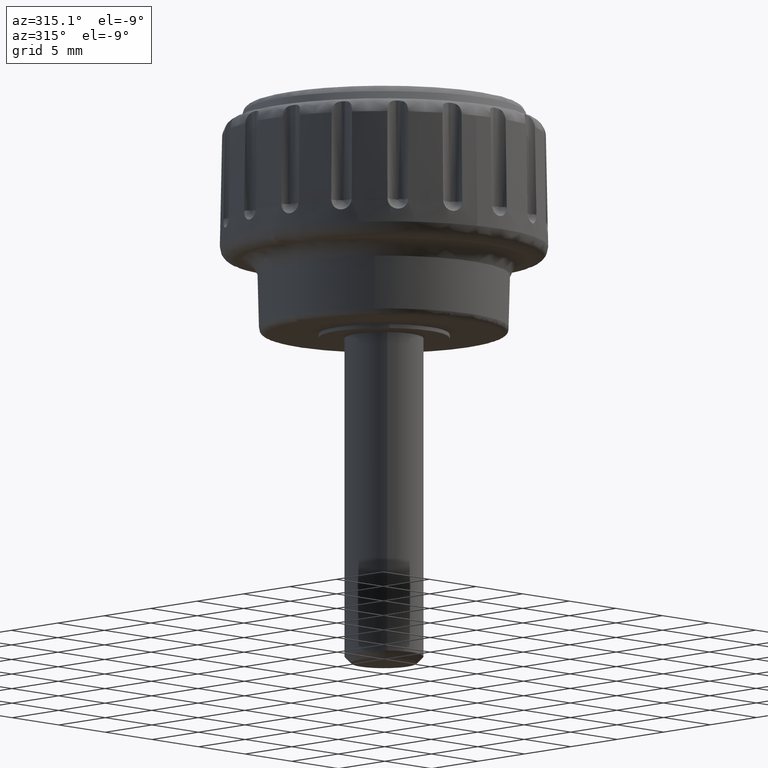
[diagram: clean part render]
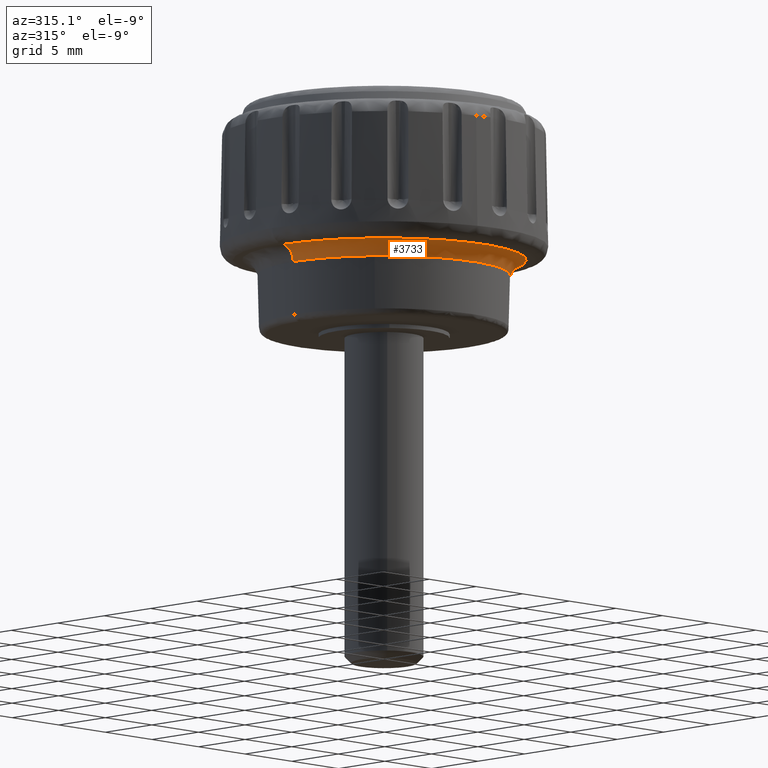
[diagram: same view with one face highlighted and labeled with its STEP entity id]
A machine part, auxiliary view. The second image highlights one B-rep face of the part: STEP entity #3733.
In plain terms, the highlighted face is a freeform B-spline surface patch.
Its self-contained STEP definition (entity closure, byte-faithful):
#1535=CARTESIAN_POINT('',(0.670740437602922,9.595245044403225,4.831421001800820));
#1536=VERTEX_POINT('',#1535);
#1550=CARTESIAN_POINT('',(9.618660000000000,0.0,4.831421000000000));
#1551=VERTEX_POINT('',#1550);
#1552=CARTESIAN_POINT('',(0.670740437602922,9.595245044403225,4.831421001800820));
#1553=CARTESIAN_POINT('',(1.195832781517715,9.558567026642926,4.831421001695140));
#1554=CARTESIAN_POINT('',(2.314559567935696,9.387328753490609,4.831421001470002));
#1555=CARTESIAN_POINT('',(3.798314048728103,8.882798900467535,4.831421001171365));
#1556=CARTESIAN_POINT('',(5.212165672242755,8.130425312257113,4.831421000886861));
#1557=CARTESIAN_POINT('',(6.373893903384330,7.257525458229110,4.831421000652985));
#1558=CARTESIAN_POINT('',(7.499924709522086,6.091831663464374,4.831421000426405));
#1559=CARTESIAN_POINT('',(8.336286062977736,4.879579574177184,4.831421000258064));
#1560=CARTESIAN_POINT('',(8.896474782467518,3.706635740320720,4.831421000145352));
#1561=CARTESIAN_POINT('',(9.276183587338258,2.623403750558714,4.831421000068941));
#1562=CARTESIAN_POINT('',(9.546863612590476,1.428719722684224,4.831421000014427));
#1563=CARTESIAN_POINT('',(9.618685904782982,0.488775746477223,4.831421000000003));
#1564=CARTESIAN_POINT('',(9.618660000000000,0.0,4.831421000000000));
#1565=B_SPLINE_CURVE_WITH_KNOTS('',3,(#1552,#1553,#1554,#1555,#1556,#1557,#1558,#1559,#1560,#1561,#1562,#1563,#1564),.UNSPECIFIED.,.F.,.U.,(4,1,1,1,1,1,1,1,1,1,4),(0.000000019536587,1.579118421281182,3.383833766430497,4.680974553147181,6.372899378853584,7.726408974241863,9.531126619045640,10.771871013030260,11.617833385466939,12.971366006660091,14.437691242315671),.UNSPECIFIED.);
#1566=EDGE_CURVE('',#1536,#1551,#1565,.T.);
#1568=CARTESIAN_POINT('',(-7.273628923355996,-6.293862690934256,4.830693251513878));
#1569=VERTEX_POINT('',#1568);
#1570=CARTESIAN_POINT('',(9.618660000000000,0.0,4.831421000000000));
#1571=CARTESIAN_POINT('',(9.618588422309912,-1.273509180384081,4.828682903290315));
#1572=CARTESIAN_POINT('',(9.365847238907701,-2.533728721521983,4.828205937086558));
#1573=CARTESIAN_POINT('',(8.874841487175836,-3.708778943518807,4.829845425240325));
#1574=CARTESIAN_POINT('',(8.384258825708505,-4.882816647215154,4.831483500678507));
#1575=CARTESIAN_POINT('',(7.665194844218289,-5.948585455979404,4.828327566499377));
#1576=CARTESIAN_POINT('',(6.758534622583657,-6.843988829878041,4.830104914143819));
#1577=CARTESIAN_POINT('',(4.934381302589804,-8.645493956336660,4.833680845379168));
#1578=CARTESIAN_POINT('',(2.459715709987807,-9.650102793004090,4.823224042509286));
#1579=CARTESIAN_POINT('',(-0.120864688618739,-9.617882045640616,4.830827326438793));
#1580=CARTESIAN_POINT('',(-1.384140432432005,-9.601941305463365,4.828571229149536));
#1581=CARTESIAN_POINT('',(-2.631206956409560,-9.337550901510914,4.828275652947290));
#1582=CARTESIAN_POINT('',(-3.792263198341610,-8.839484524100996,4.829852692310831));
#1583=CARTESIAN_POINT('',(-4.952302624758250,-8.341854337120072,4.831428350554289));
#1584=CARTESIAN_POINT('',(-6.003752260157995,-7.620359095542486,4.828379855784535));
#1585=CARTESIAN_POINT('',(-6.886326211513537,-6.715382380762375,4.830121813450998));
#1586=CARTESIAN_POINT('',(-7.019918389378883,-6.578399173792336,4.830385487580577));
#1587=CARTESIAN_POINT('',(-7.149052300256770,-6.437816981738525,4.830571426235365));
#1588=CARTESIAN_POINT('',(-7.273628923355996,-6.293862690934256,4.830693251513878));
#1589=B_SPLINE_CURVE_WITH_KNOTS('',3,(#1570,#1571,#1572,#1573,#1574,#1575,#1576,#1577,#1578,#1579,#1580,#1581,#1582,#1583,#1584,#1585,#1586,#1587,#1588),.UNSPECIFIED.,.F.,.U.,(4,3,3,3,3,3,4),(0.0,3.820536709079851,7.637781334754942,15.317879447584660,19.077526380828310,22.833880736851231,23.402467152170122),.UNSPECIFIED.);
#1590=EDGE_CURVE('',#1551,#1569,#1589,.T.);
#1628=CARTESIAN_POINT('',(-9.617900552514328,0.120868465202919,4.831421055692891));
#1629=VERTEX_POINT('',#1628);
#1630=CARTESIAN_POINT('',(-7.273628923355996,-6.293862690934256,4.830693251513878));
#1631=CARTESIAN_POINT('',(-8.804744450065970,-4.524588744274539,4.832190490186579));
#1632=CARTESIAN_POINT('',(-9.647448302229194,-2.245934593765522,4.824002936516507));
#1633=CARTESIAN_POINT('',(-9.617900552514328,0.120868465202919,4.831421055692891));
#1634=B_SPLINE_CURVE_WITH_KNOTS('',3,(#1630,#1631,#1632,#1633),.UNSPECIFIED.,.F.,.U.,(4,4),(23.402467152170122,30.390699708899749),.UNSPECIFIED.);
#1635=EDGE_CURVE('',#1569,#1629,#1634,.T.);
#3553=CARTESIAN_POINT('',(0.670787346279747,9.595916094221623,4.749002716383700));
#3554=CARTESIAN_POINT('',(9.732723718857159,8.962455756320429,4.749002716383699));
#3555=CARTESIAN_POINT('',(9.618573185349097,-0.120876918201360,4.749002716383700));
#3556=CARTESIAN_POINT('',(9.497696267147736,-9.739450103550459,4.749002716383699));
#3557=CARTESIAN_POINT('',(-0.120876918201359,-9.618573185349097,4.749002716383700));
#3558=CARTESIAN_POINT('',(-9.739450103550457,-9.497696267147740,4.749002716383699));
#3559=CARTESIAN_POINT('',(-9.618573185349097,0.120876918201359,4.749002716383700));
#3560=CARTESIAN_POINT('',(0.666814088669536,9.539076848729346,6.088520472276495));
#3561=CARTESIAN_POINT('',(9.675074124244951,8.909368670319967,6.088520472276493));
#3562=CARTESIAN_POINT('',(9.561599735685791,-0.120160931029261,6.088520472276496));
#3563=CARTESIAN_POINT('',(9.441438804656526,-9.681760666715050,6.088520472276497));
#3564=CARTESIAN_POINT('',(-0.120160931029261,-9.561599735685791,6.088520472276496));
#3565=CARTESIAN_POINT('',(-9.681760666715050,-9.441438804656526,6.088520472276497));
#3566=CARTESIAN_POINT('',(-9.561599735685791,0.120160931029260,6.088520472276496));
#3567=CARTESIAN_POINT('',(0.760090424517193,10.873436981392418,5.997214029533012));
#3568=CARTESIAN_POINT('',(11.028458041439434,10.155642974363962,5.997214029533011));
#3569=CARTESIAN_POINT('',(10.899110450203239,-0.136969471143967,5.997214029533012));
#3570=CARTESIAN_POINT('',(10.762140979059273,-11.036079921347206,5.997214029533011));
#3571=CARTESIAN_POINT('',(-0.136969471143966,-10.899110450203239,5.997214029533012));
#3572=CARTESIAN_POINT('',(-11.036079921347204,-10.762140979059273,5.997214029533011));
#3573=CARTESIAN_POINT('',(-10.899110450203239,0.136969471143965,5.997214029533012));
#3581=(BOUNDED_SURFACE()B_SPLINE_SURFACE(2,2,((#3553,#3560,#3567),(#3554,#3561,#3568),(#3555,#3562,#3569),(#3556,#3563,#3570),(#3557,#3564,#3571),(#3558,#3565,#3572),(#3559,#3566,#3573)),.UNSPECIFIED.,.F.,.F.,.U.)B_SPLINE_SURFACE_WITH_KNOTS((3,2,2,3),(3,3),(0.0,17.337276844998762,35.396940225205810,53.456603605412852),(0.0,2.145652405197137),.UNSPECIFIED.)GEOMETRIC_REPRESENTATION_ITEM()RATIONAL_B_SPLINE_SURFACE(((0.895535987760981,0.597317740470941,0.895740794979987),(0.658544865861154,0.439245922722104,0.658695473703174),(0.916143911404444,0.611063115927361,0.916353431612754),(0.647811572296850,0.432086873005218,0.647959725456941),(0.916143911404444,0.611063115927361,0.916353431612754),(0.647811572296850,0.432086873005218,0.647959725456941),(0.916143911404444,0.611063115927361,0.916353431612754)))REPRESENTATION_ITEM('')SURFACE());
#3582=ORIENTED_EDGE('',*,*,#1566,.F.);
#3583=CARTESIAN_POINT('',(0.754204565518100,10.789237108793451,5.999998500495471));
#3584=VERTEX_POINT('',#3583);
#3585=CARTESIAN_POINT('',(0.670740437602922,9.595245044403225,4.831421001800820));
#3586=CARTESIAN_POINT('',(0.670980507417965,9.598679351586689,4.966348790612657));
#3587=CARTESIAN_POINT('',(0.673895795257464,9.640383861448855,5.177334340834781));
#3588=CARTESIAN_POINT('',(0.684388265901342,9.790483395195476,5.481089270759107));
#3589=CARTESIAN_POINT('',(0.699075126142328,10.000585567428869,5.724696809862245));
#3590=CARTESIAN_POINT('',(0.718687771527708,10.281153321945430,5.899610619301723));
#3591=CARTESIAN_POINT('',(0.737401894928627,10.548867313463120,5.983608639022578));
#3592=CARTESIAN_POINT('',(0.748826918743283,10.712307441706409,5.999834514703761));
#3593=CARTESIAN_POINT('',(0.754204565518100,10.789237108793451,5.999998500495471));
#3594=B_SPLINE_CURVE_WITH_KNOTS('',3,(#3585,#3586,#3587,#3588,#3589,#3590,#3591,#3592,#3593),.UNSPECIFIED.,.F.,.U.,(4,1,1,1,1,1,4),(0.000000021069363,0.404883006589917,0.636246575513403,1.012204783469353,1.359250157473892,1.619534529167995,1.850893895890860),.UNSPECIFIED.);
#3595=EDGE_CURVE('',#1536,#3584,#3594,.T.);
#3596=ORIENTED_EDGE('',*,*,#3595,.T.);
#3597=CARTESIAN_POINT('',(10.815565720102800,0.0,5.999999999999800));
#3598=VERTEX_POINT('',#3597);
#3599=CARTESIAN_POINT('',(0.754204565518100,10.789237108793451,5.999998500495471));
#3600=CARTESIAN_POINT('',(1.323552569513522,10.749479874198810,5.999998542918985));
#3601=CARTESIAN_POINT('',(2.267179404331952,10.607809913141359,5.999998618863972));
#3602=CARTESIAN_POINT('',(3.548494296722402,10.238156221432391,5.999998735165525));
#3603=CARTESIAN_POINT('',(4.568056771624478,9.823319240557892,5.999998836680745));
#3604=CARTESIAN_POINT('',(5.802990064827257,9.170897886824397,5.999998970787088));
#3605=CARTESIAN_POINT('',(6.972277737325348,8.324073476336620,5.999999114793980));
#3606=CARTESIAN_POINT('',(7.996610857408425,7.312132715219085,5.999999261026495));
#3607=CARTESIAN_POINT('',(8.747291197845499,6.395180438356680,5.999999381228021));
#3608=CARTESIAN_POINT('',(9.351139600545396,5.474443496116546,5.999999491532127));
#3609=CARTESIAN_POINT('',(9.941436169157898,4.326456294446594,5.999999617789857));
#3610=CARTESIAN_POINT('',(10.375775851072060,3.153799043072819,5.999999735070287));
#3611=CARTESIAN_POINT('',(10.726063020834440,1.648771104253276,5.999999871231346));
#3612=CARTESIAN_POINT('',(10.815621513006130,0.634153767382731,5.999999952862859));
#3613=CARTESIAN_POINT('',(10.815565720102800,0.0,5.999999999999800));
#3614=B_SPLINE_CURVE_WITH_KNOTS('',3,(#3599,#3600,#3601,#3602,#3603,#3604,#3605,#3606,#3607,#3608,#3609,#3610,#3611,#3612,#3613),.UNSPECIFIED.,.F.,.U.,(4,1,1,1,1,1,1,1,1,1,1,1,4),(0.000000018065339,1.712197101858482,2.853673148034490,3.995149040487156,5.009791731252404,7.039083922876531,8.307362971067747,9.322014658287603,10.590309469274310,11.604956808805939,13.190333935516501,14.331805331144871,16.234257006365031),.UNSPECIFIED.);
#3615=EDGE_CURVE('',#3584,#3598,#3614,.T.);
#3616=ORIENTED_EDGE('',*,*,#3615,.T.);
#3617=CARTESIAN_POINT('',(-10.817402271871210,0.067982860923598,5.999999291158366));
#3618=VERTEX_POINT('',#3617);
#3619=CARTESIAN_POINT('',(10.815565720102800,0.0,5.999999999999800));
#3620=CARTESIAN_POINT('',(10.809489731422341,-0.501237069445921,5.999998966266286));
#3621=CARTESIAN_POINT('',(10.806240428229129,-0.569425368911320,5.999998954152757));
#3622=CARTESIAN_POINT('',(10.764627296724861,-1.068969025373821,5.999999810099367));
#3623=CARTESIAN_POINT('',(10.737434159829871,-1.395408265684740,6.000000369438991));
#3624=CARTESIAN_POINT('',(10.665488751280069,-1.805898108091533,5.999999413964969));
#3625=CARTESIAN_POINT('',(10.606147060451210,-2.127350261565651,5.999999694453611));
#3626=CARTESIAN_POINT('',(10.536136075489839,-2.506597660288808,6.000000025372495));
#3627=CARTESIAN_POINT('',(10.453601696602060,-2.794268250465308,5.999997264368782));
#3628=CARTESIAN_POINT('',(10.343689964050951,-3.164030490216950,5.999999117234586));
#3629=CARTESIAN_POINT('',(10.233421063946860,-3.534994303916121,6.000000976121435));
#3630=CARTESIAN_POINT('',(10.124951092713850,-3.812243171025985,5.999997521081794));
#3631=CARTESIAN_POINT('',(9.980648747334193,-4.171420757345953,5.999999629512236));
#3632=CARTESIAN_POINT('',(9.837336463570797,-4.528134018219939,6.000001723476689));
#3633=CARTESIAN_POINT('',(9.701823641040008,-4.792657670541480,6.000001683860231));
#3634=CARTESIAN_POINT('',(9.523845909311069,-5.133470080933732,5.999999582697181));
#3635=CARTESIAN_POINT('',(9.371901770591155,-5.424430346912267,5.999997788880579));
#3636=CARTESIAN_POINT('',(9.149189365274728,-5.771117788674821,5.999999569335321));
#3637=CARTESIAN_POINT('',(8.969912574353092,-6.046118099053273,5.999999657130299));
#3638=CARTESIAN_POINT('',(8.756862466649029,-6.372924739464358,5.999999761464660));
#3639=CARTESIAN_POINT('',(8.573600098041201,-6.602179060446985,5.999999356673610));
#3640=CARTESIAN_POINT('',(8.327035004203903,-6.904626963216145,5.999999603083932));
#3641=CARTESIAN_POINT('',(8.098423765069736,-7.185051855278173,5.999999831551669));
#3642=CARTESIAN_POINT('',(7.853961294443629,-7.438973092857281,5.999999954863137));
#3643=CARTESIAN_POINT('',(7.601132058101334,-7.697852768970715,5.999999999886899));
#3644=CARTESIAN_POINT('',(7.353278440700927,-7.951637754933696,6.000000044024604));
#3645=CARTESIAN_POINT('',(7.093808804260804,-8.170715011577201,6.000001041294938));
#3646=CARTESIAN_POINT('',(6.821129285258119,-8.397723473970460,5.999999798084424));
#3647=CARTESIAN_POINT('',(6.575792611295719,-8.601968740826504,5.999998679536417));
#3648=CARTESIAN_POINT('',(6.237392459619393,-8.838709729423405,5.999999495500077));
#3649=CARTESIAN_POINT('',(5.974761506278385,-9.020244603469243,5.999999298001364));
#3650=CARTESIAN_POINT('',(5.694081211368940,-9.214255481986578,5.999999086929529));
#3651=CARTESIAN_POINT('',(5.364889449116437,-9.395680867880843,5.999999581543473));
#3652=CARTESIAN_POINT('',(5.064850787884758,-9.558306648224935,5.999999623638949));
#3653=CARTESIAN_POINT('',(4.736319654572381,-9.736375806722478,5.999999669731924));
#3654=CARTESIAN_POINT('',(4.448812479983898,-9.861425174472299,5.999996226484535));
#3655=CARTESIAN_POINT('',(4.104848804186015,-10.007657883091010,5.999999116617433));
#3656=CARTESIAN_POINT('',(3.737764091465023,-10.163720268775171,6.000002201023373));
#3657=CARTESIAN_POINT('',(3.467740410966103,-10.250497917295499,6.000001422978317));
#3658=CARTESIAN_POINT('',(3.086893699719834,-10.369295641184429,5.999999751706942));
#3659=CARTESIAN_POINT('',(2.766936502500015,-10.469100065508361,5.999998347637302));
#3660=CARTESIAN_POINT('',(2.362619100057604,-10.556120340777371,5.999999477372305));
#3661=CARTESIAN_POINT('',(2.034450484873391,-10.624377056992790,5.999999707570208));
#3662=CARTESIAN_POINT('',(1.647525192398480,-10.704854740302631,5.999999978983703));
#3663=CARTESIAN_POINT('',(1.348967493976170,-10.736760049399990,5.999999236184180));
#3664=CARTESIAN_POINT('',(0.955508218746757,-10.774951275290251,5.999999571871630));
#3665=CARTESIAN_POINT('',(0.570715421161338,-10.812301287295830,5.999999900165106));
#3666=CARTESIAN_POINT('',(0.250739455510264,-10.815841420970170,5.999999709550655));
#3667=CARTESIAN_POINT('',(-0.135934059610031,-10.816719355490569,5.999999810101171));
#3668=CARTESIAN_POINT('',(-0.630988988239796,-10.802774294939971,5.999999287817528));
#3669=CARTESIAN_POINT('',(-0.698256040845603,-10.798641564050770,5.999999291218577));
#3670=CARTESIAN_POINT('',(-1.191294827673189,-10.751880450313941,5.999999863460642));
#3671=CARTESIAN_POINT('',(-1.511444550910078,-10.721516596554229,6.000000235040210));
#3672=CARTESIAN_POINT('',(-1.920266684733316,-10.645485437259790,5.999999445581058));
#3673=CARTESIAN_POINT('',(-2.235237185246084,-10.584027237499701,5.999999755188562));
#3674=CARTESIAN_POINT('',(-2.608099001955968,-10.511273071706521,6.000000121701668));
#3675=CARTESIAN_POINT('',(-2.893775117000000,-10.426419469031170,5.999997392312397));
#3676=CARTESIAN_POINT('',(-3.257004057313481,-10.314819703253979,5.999999148900166));
#3677=CARTESIAN_POINT('',(-3.622768691837758,-10.202440861669221,6.000000917750640));
#3678=CARTESIAN_POINT('',(-3.895312588666839,-10.093277762825910,5.999997712493224));
#3679=CARTESIAN_POINT('',(-4.249296007869406,-9.947798799339864,5.999999668971110));
#3680=CARTESIAN_POINT('',(-4.975482718777086,-9.649352927953629,6.000003682628709));
#3681=CARTESIAN_POINT('',(-5.435481049505873,-9.363381879716199,5.999998896997456));
#3682=CARTESIAN_POINT('',(-6.095224610419687,-8.936636389864505,5.999999669503103));
#3683=CARTESIAN_POINT('',(-6.387664812233918,-8.747475715067340,6.000000011926615));
#3684=CARTESIAN_POINT('',(-6.670955901222399,-8.518523923345802,5.999998301410901));
#3685=CARTESIAN_POINT('',(-6.940165202492091,-8.297418818274746,5.999999590451734));
#3686=CARTESIAN_POINT('',(-7.228260115336044,-8.060802714468640,6.000000969921553));
#3687=CARTESIAN_POINT('',(-7.456010422779182,-7.839118861061575,5.999999747904234));
#3688=CARTESIAN_POINT('',(-7.721165953332209,-7.576957840427402,5.999999945733659));
#3689=CARTESIAN_POINT('',(-7.979250670576285,-7.321787779513820,6.000000138287634));
#3690=CARTESIAN_POINT('',(-8.180095254561273,-7.083369992848763,6.000001596051343));
#3691=CARTESIAN_POINT('',(-8.411989558924111,-6.804107241151990,5.999999531591996));
#3692=CARTESIAN_POINT('',(-8.598510548830646,-6.579486093023212,5.999997871072554));
#3693=CARTESIAN_POINT('',(-8.859991364012991,-6.206126488576146,5.999998945544492));
#3694=CARTESIAN_POINT('',(-9.026329874261553,-5.966151423836068,5.999998904121917));
#3695=CARTESIAN_POINT('',(-9.212532130234562,-5.697519112742862,5.999998857752757));
#3696=CARTESIAN_POINT('',(-9.401804246400566,-5.353727792443865,5.999999561547790));
#3697=CARTESIAN_POINT('',(-9.557541306420614,-5.066284124975898,5.999999619644481));
#3698=CARTESIAN_POINT('',(-9.734228382006030,-4.740173043940182,5.999999685556438));
#3699=CARTESIAN_POINT('',(-9.856926825578240,-4.458821785114236,5.999996419744694));
#3700=CARTESIAN_POINT('',(-10.002471818394040,-4.117595970550789,5.999999173934120));
#3701=CARTESIAN_POINT('',(-10.157022795292059,-3.755255899873506,6.000002098546353));
#3702=CARTESIAN_POINT('',(-10.243322724653989,-3.488714708258349,6.000001360812118));
#3703=CARTESIAN_POINT('',(-10.361512925722140,-3.112877331512990,5.999999759066635));
#3704=CARTESIAN_POINT('',(-10.461751120382401,-2.794126201636485,5.999998400611585));
#3705=CARTESIAN_POINT('',(-10.547201916639940,-2.401108270083280,5.999995592294386));
#3706=CARTESIAN_POINT('',(-10.615870243972481,-2.074068981809903,5.999998843827708));
#3707=CARTESIAN_POINT('',(-10.698263268408869,-1.681664548542154,6.000002745243030));
#3708=CARTESIAN_POINT('',(-10.729135544588550,-1.408359339632887,5.999998185276589));
#3709=CARTESIAN_POINT('',(-10.770084536801299,-1.009394622641740,5.999999611050146));
#3710=CARTESIAN_POINT('',(-10.808735905750380,-0.632815575372985,6.000000956824410));
#3711=CARTESIAN_POINT('',(-10.814232006361539,-0.310628534469961,5.999998559649072));
#3712=CARTESIAN_POINT('',(-10.817402271871210,0.067982860923598,5.999999291158366));
#3713=B_SPLINE_CURVE_WITH_KNOTS('',3,(#3619,#3620,#3621,#3622,#3623,#3624,#3625,#3626,#3627,#3628,#3629,#3630,#3631,#3632,#3633,#3634,#3635,#3636,#3637,#3638,#3639,#3640,#3641,#3642,#3643,#3644,#3645,#3646,#3647,#3648,#3649,#3650,#3651,#3652,#3653,#3654,#3655,#3656,#3657,#3658,#3659,#3660,#3661,#3662,#3663,#3664,#3665,#3666,#3667,#3668,#3669,#3670,#3671,#3672,#3673,#3674,#3675,#3676,#3677,#3678,#3679,#3680,#3681,#3682,#3683,#3684,#3685,#3686,#3687,#3688,#3689,#3690,#3691,#3692,#3693,#3694,#3695,#3696,#3697,#3698,#3699,#3700,#3701,#3702,#3703,#3704,#3705,#3706,#3707,#3708,#3709,#3710,#3711,#3712),.UNSPECIFIED.,.F.,.U.,(4,3,3,3,3,3,3,3,3,3,3,3,3,3,3,3,3,3,3,3,3,3,3,3,3,3,3,3,3,3,3,4),(0.0,1.503821683856248,2.486531406400730,3.645926675485332,4.809089498420639,5.964271835235556,6.950480522843301,8.122477556220343,9.209134592267368,10.274406477569521,11.232858590737271,12.257180432310911,13.378774609899111,14.575761691498499,15.581375289902970,16.767038140267211,17.926585147816450,19.411728703428739,20.376091571015049,21.517703532104740,22.667285064226441,25.025618213310889,26.070981082950990,27.189678406553369,28.278543805066651,29.154357691758289,30.134759171071678,31.247045933498029,32.428158401869133,33.429870730389318,34.631794696911982,35.766279434349620),.UNSPECIFIED.);
#3714=EDGE_CURVE('',#3598,#3618,#3713,.T.);
#3715=ORIENTED_EDGE('',*,*,#3714,.T.);
#3716=CARTESIAN_POINT('',(-9.617900552514328,0.120868465202919,4.831421055692891));
#3717=CARTESIAN_POINT('',(-9.620950293302023,0.117538296889891,4.947208078980437));
#3718=CARTESIAN_POINT('',(-9.654288359466925,0.111544746902817,5.139383391731291));
#3719=CARTESIAN_POINT('',(-9.759271620571511,0.103020018029498,5.379199979479791));
#3720=CARTESIAN_POINT('',(-9.883844336476953,0.095734392749412,5.563867395807362));
#3721=CARTESIAN_POINT('',(-10.039775355446380,0.088646528529605,5.723295080855640));
#3722=CARTESIAN_POINT('',(-10.231379968467230,0.081745021071981,5.855373064264890));
#3723=CARTESIAN_POINT('',(-10.489228682704271,0.074311905030102,5.967647590546557));
#3724=CARTESIAN_POINT('',(-10.691883045407421,0.070054096678526,5.999963121290191));
#3725=CARTESIAN_POINT('',(-10.817402271871210,0.067982860923598,5.999999291158366));
#3726=B_SPLINE_CURVE_WITH_KNOTS('',3,(#3716,#3717,#3718,#3719,#3720,#3721,#3722,#3723,#3724,#3725),.UNSPECIFIED.,.F.,.U.,(4,1,1,1,1,1,1,4),(0.000000021131391,0.347619051964077,0.579366763796421,0.782147144715614,1.013887296065953,1.245635291646566,1.477383201379761,1.853970503922330),.UNSPECIFIED.);
#3727=EDGE_CURVE('',#1629,#3618,#3726,.T.);
#3728=ORIENTED_EDGE('',*,*,#3727,.F.);
#3729=ORIENTED_EDGE('',*,*,#1635,.F.);
#3730=ORIENTED_EDGE('',*,*,#1590,.F.);
#3731=EDGE_LOOP('',(#3582,#3596,#3616,#3715,#3728,#3729,#3730));
#3732=FACE_OUTER_BOUND('',#3731,.T.);
#3733=ADVANCED_FACE('',(#3732),#3581,.F.);